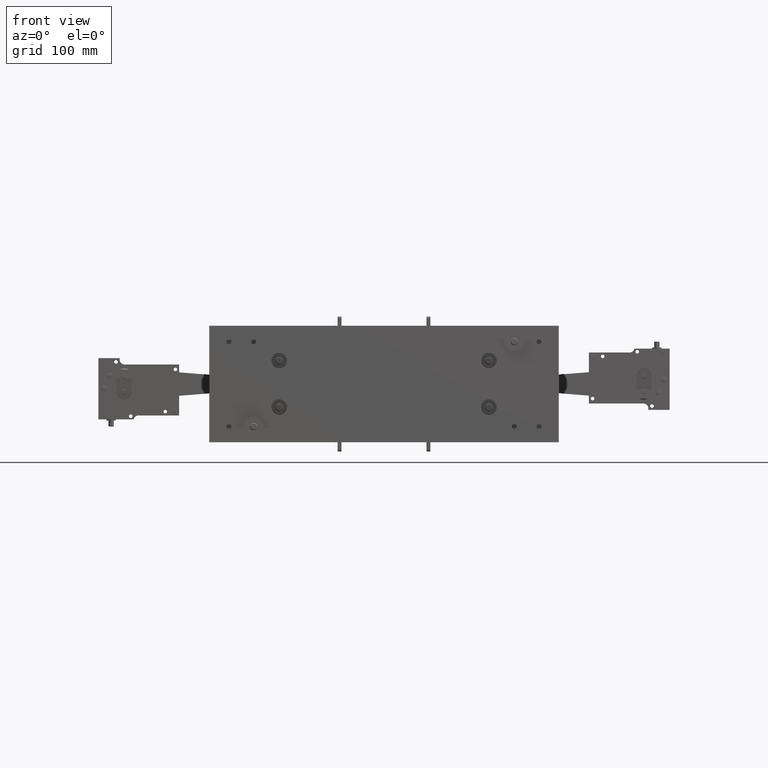
[diagram: clean part render]
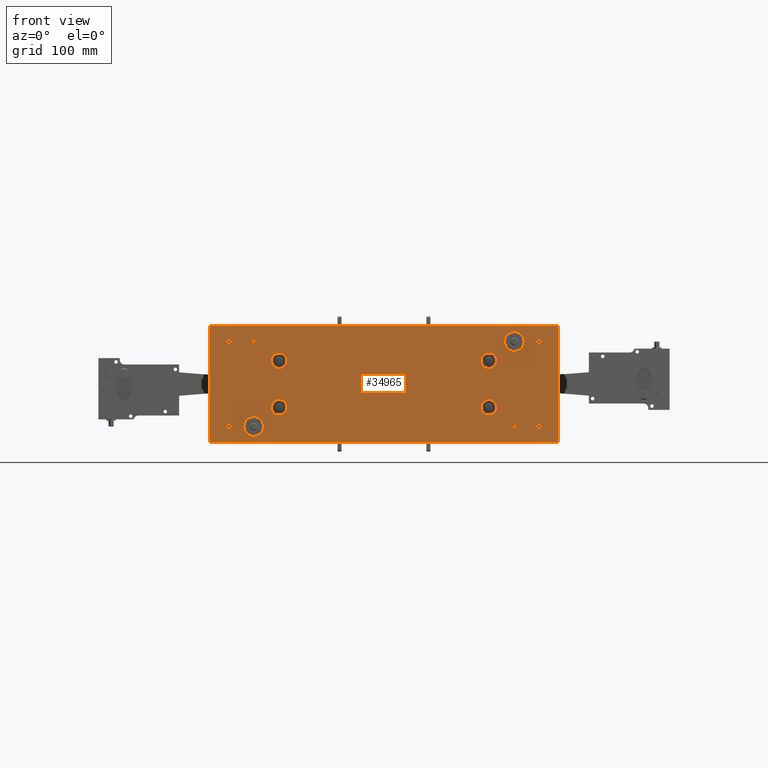
[diagram: same view with one face highlighted and labeled with its STEP entity id]
A machine part, front view. The second image highlights one B-rep face of the part: STEP entity #34965.
In plain terms, the highlighted planar face has unit normal (0, 1, -0).
Its self-contained STEP definition (entity closure, byte-faithful):
#242 = CIRCLE ( 'NONE', #25997, 0.1250000000000004400 ) ;
#1101 = DIRECTION ( 'NONE',  ( 0.0000000000000000000, 0.0000000000000000000, 1.000000000000000000 ) ) ;
#1282 = CARTESIAN_POINT ( 'NONE',  ( -2.151929547693748600, -0.7500000000000026600, -7.983267716535454600 ) ) ;
#1957 = CARTESIAN_POINT ( 'NONE',  ( -2.151929547693749000, -0.7500000000000026600, -7.858267716535455500 ) ) ;
#2049 = ORIENTED_EDGE ( 'NONE', *, *, #13159, .F. ) ;
#2130 = DIRECTION ( 'NONE',  ( 1.000000000000000000, 5.551115123125812300E-017, 5.551115123125792600E-017 ) ) ;
#2234 = VERTEX_POINT ( 'NONE', #7958 ) ;
#2467 = DIRECTION ( 'NONE',  ( 0.0000000000000000000, 0.0000000000000000000, 1.000000000000000000 ) ) ;
#2647 = AXIS2_PLACEMENT_3D ( 'NONE', #7887, #43933, #13110 ) ;
#3965 = VERTEX_POINT ( 'NONE', #35315 ) ;
#4120 = CARTESIAN_POINT ( 'NONE',  ( -1.181102362204727600, -0.7499999999999984500, 5.708460629921270300 ) ) ;
#4313 = DIRECTION ( 'NONE',  ( 0.0000000000000000000, -3.471217272762713500E-016, -1.000000000000000000 ) ) ;
#4514 = AXIS2_PLACEMENT_3D ( 'NONE', #44123, #13318, #49316 ) ;
#4682 = VERTEX_POINT ( 'NONE', #9297 ) ;
#4707 = DIRECTION ( 'NONE',  ( 0.0000000000000000000, 0.0000000000000000000, 1.000000000000000000 ) ) ;
#4764 = DIRECTION ( 'NONE',  ( 0.0000000000000000000, 0.0000000000000000000, 1.000000000000000000 ) ) ;
#4808 = DIRECTION ( 'NONE',  ( -5.551115123125822100E-017, -1.000000000000000000, -2.220446049250312300E-016 ) ) ;
#4943 = ORIENTED_EDGE ( 'NONE', *, *, #63337, .F. ) ;
#5320 = CARTESIAN_POINT ( 'NONE',  ( 2.151929547693746800, -0.7499999999999983300, 7.983267716535452000 ) ) ;
#6029 = CARTESIAN_POINT ( 'NONE',  ( -2.151929547693748600, -0.7500000000000004400, -6.608267716535447500 ) ) ;
#6861 = DIRECTION ( 'NONE',  ( -5.551115123125822100E-017, -1.000000000000000000, -2.220446049250312300E-016 ) ) ;
#6908 = EDGE_CURVE ( 'NONE', #41779, #29858, #30986, .T. ) ;
#7098 = FACE_BOUND ( 'NONE', #58626, .T. ) ;
#7102 = DIRECTION ( 'NONE',  ( 0.0000000000000000000, 0.0000000000000000000, 1.000000000000000000 ) ) ;
#7143 = AXIS2_PLACEMENT_3D ( 'NONE', #44502, #13704, #49711 ) ;
#7400 = EDGE_CURVE ( 'NONE', #14802, #49330, #22021, .T. ) ;
#7715 = ORIENTED_EDGE ( 'NONE', *, *, #24969, .F. ) ;
#7887 = CARTESIAN_POINT ( 'NONE',  ( -2.151929547693747700, -0.7500000000000004400, 7.858267716535447500 ) ) ;
#7958 = CARTESIAN_POINT ( 'NONE',  ( 2.952755905511815500, -0.7500000000000004400, -8.858267716535451100 ) ) ;
#8093 = DIRECTION ( 'NONE',  ( -5.551115123125790100E-017, -2.220446049250310400E-016, -1.000000000000000000 ) ) ;
#8515 = EDGE_CURVE ( 'NONE', #12765, #2234, #43656, .T. ) ;
#8742 = FACE_BOUND ( 'NONE', #19062, .T. ) ;
#8930 = CARTESIAN_POINT ( 'NONE',  ( 2.151929547693747200, -0.7500000000000004400, 6.733267716535443100 ) ) ;
#9140 = AXIS2_PLACEMENT_3D ( 'NONE', #62763, #31986, #1101 ) ;
#9297 = CARTESIAN_POINT ( 'NONE',  ( 2.151929547693749000, -0.7500000000000004400, -6.733267716535442200 ) ) ;
#9369 = CARTESIAN_POINT ( 'NONE',  ( 1.181102362204727200, -0.7499999999999983300, 5.314960629921269900 ) ) ;
#9571 = EDGE_CURVE ( 'NONE', #27897, #21378, #53244, .T. ) ;
#9574 = CIRCLE ( 'NONE', #47953, 0.1250000000000004400 ) ;
#9821 = AXIS2_PLACEMENT_3D ( 'NONE', #47384, #16548, #52566 ) ;
#9826 = ORIENTED_EDGE ( 'NONE', *, *, #10796, .F. ) ;
#9844 = CIRCLE ( 'NONE', #56192, 0.1250000000000004400 ) ;
#10070 = AXIS2_PLACEMENT_3D ( 'NONE', #65986, #35209, #4313 ) ;
#10349 = FACE_BOUND ( 'NONE', #42623, .T. ) ;
#10444 = DIRECTION ( 'NONE',  ( -5.551115123125822100E-017, -1.000000000000000000, -2.220446049250312300E-016 ) ) ;
#10796 = EDGE_CURVE ( 'NONE', #49330, #14802, #41003, .T. ) ;
#10889 = EDGE_CURVE ( 'NONE', #37471, #51520, #65149, .T. ) ;
#11226 = CARTESIAN_POINT ( 'NONE',  ( 2.151929547693746800, -0.7500000000000004400, 6.608267716535443100 ) ) ;
#11233 = DIRECTION ( 'NONE',  ( 0.0000000000000000000, 0.0000000000000000000, 1.000000000000000000 ) ) ;
#11251 = EDGE_LOOP ( 'NONE', ( #20246, #60544 ) ) ;
#11254 = EDGE_CURVE ( 'NONE', #18956, #47507, #23238, .T. ) ;
#11501 = ORIENTED_EDGE ( 'NONE', *, *, #46379, .F. ) ;
#11787 = CARTESIAN_POINT ( 'NONE',  ( -2.952755905511816400, -0.7500000000000026600, -8.858267716535454600 ) ) ;
#11971 = ORIENTED_EDGE ( 'NONE', *, *, #6908, .F. ) ;
#12020 = DIRECTION ( 'NONE',  ( -5.551115123125822100E-017, -1.000000000000000000, -2.220446049250312300E-016 ) ) ;
#12081 = EDGE_CURVE ( 'NONE', #21378, #27897, #39274, .T. ) ;
#12598 = VERTEX_POINT ( 'NONE', #29006 ) ;
#12765 = VERTEX_POINT ( 'NONE', #19727 ) ;
#12852 = CARTESIAN_POINT ( 'NONE',  ( -1.181102362204727200, -0.7500000000000005600, -5.708460629921272100 ) ) ;
#13110 = DIRECTION ( 'NONE',  ( 0.0000000000000000000, 0.0000000000000000000, -1.000000000000000000 ) ) ;
#13137 = AXIS2_PLACEMENT_3D ( 'NONE', #9369, #45401, #14598 ) ;
#13152 = VERTEX_POINT ( 'NONE', #58188 ) ;
#13159 = EDGE_CURVE ( 'NONE', #29858, #41779, #18232, .T. ) ;
#13318 = DIRECTION ( 'NONE',  ( -5.551115123125822100E-017, -1.000000000000000000, -2.220446049250312300E-016 ) ) ;
#13704 = DIRECTION ( 'NONE',  ( -5.551115123125822100E-017, -1.000000000000000000, -2.220446049250312300E-016 ) ) ;
#13712 = VECTOR ( 'NONE', #64773, 39.37007874015748100 ) ;
#14534 = AXIS2_PLACEMENT_3D ( 'NONE', #14878, #50879, #20015 ) ;
#14598 = DIRECTION ( 'NONE',  ( 0.0000000000000000000, -3.471217272762713500E-016, -1.000000000000000000 ) ) ;
#14647 = CARTESIAN_POINT ( 'NONE',  ( -2.151929547693748600, -0.7500000000000026600, -7.733267716535455500 ) ) ;
#14802 = VERTEX_POINT ( 'NONE', #39325 ) ;
#14878 = CARTESIAN_POINT ( 'NONE',  ( 1.181102362204727200, -0.7499999999999983300, 5.314960629921269900 ) ) ;
#15348 = PLANE ( 'NONE',  #53361 ) ;
#15882 = EDGE_LOOP ( 'NONE', ( #52192, #54060 ) ) ;
#16435 = DIRECTION ( 'NONE',  ( 0.0000000000000000000, 0.0000000000000000000, 1.000000000000000000 ) ) ;
#16474 = AXIS2_PLACEMENT_3D ( 'NONE', #1957, #37964, #7102 ) ;
#16548 = DIRECTION ( 'NONE',  ( -5.551115123125822100E-017, -1.000000000000000000, -2.220446049250312300E-016 ) ) ;
#17791 = EDGE_LOOP ( 'NONE', ( #31886, #9826 ) ) ;
#17866 = CARTESIAN_POINT ( 'NONE',  ( -1.181102362204727200, -0.7500000000000004400, -5.314960629921270800 ) ) ;
#18047 = DIRECTION ( 'NONE',  ( -5.551115123125822100E-017, -1.000000000000000000, -2.220446049250312300E-016 ) ) ;
#18232 = CIRCLE ( 'NONE', #34869, 0.1250000000000004400 ) ;
#18471 = EDGE_CURVE ( 'NONE', #43637, #45369, #27001, .T. ) ;
#18956 = VERTEX_POINT ( 'NONE', #41074 ) ;
#19062 = EDGE_LOOP ( 'NONE', ( #40105, #32878 ) ) ;
#19468 = EDGE_LOOP ( 'NONE', ( #11971, #2049 ) ) ;
#19486 = CIRCLE ( 'NONE', #9821, 0.1250000000000004400 ) ;
#19579 = EDGE_CURVE ( 'NONE', #54374, #3965, #57477, .T. ) ;
#19727 = CARTESIAN_POINT ( 'NONE',  ( 2.952755905511814200, -0.7499999999999983300, 8.858267716535452900 ) ) ;
#20015 = DIRECTION ( 'NONE',  ( 0.0000000000000000000, -3.471217272762713500E-016, -1.000000000000000000 ) ) ;
#20174 = CARTESIAN_POINT ( 'NONE',  ( 2.151929547693747700, -0.7500000000000004400, -7.858267716535452000 ) ) ;
#20246 = ORIENTED_EDGE ( 'NONE', *, *, #9571, .F. ) ;
#20386 = CIRCLE ( 'NONE', #9140, 0.1250000000000004400 ) ;
#20498 = CARTESIAN_POINT ( 'NONE',  ( -2.952755905511816900, -0.7500000000000026600, 8.858267716535449300 ) ) ;
#20615 = AXIS2_PLACEMENT_3D ( 'NONE', #48904, #18047, #54076 ) ;
#20825 = FACE_BOUND ( 'NONE', #15882, .T. ) ;
#21378 = VERTEX_POINT ( 'NONE', #22818 ) ;
#22021 = CIRCLE ( 'NONE', #39348, 0.1250000000000004400 ) ;
#22145 = EDGE_CURVE ( 'NONE', #13152, #4682, #22582, .T. ) ;
#22434 = FACE_BOUND ( 'NONE', #11251, .T. ) ;
#22553 = CARTESIAN_POINT ( 'NONE',  ( -2.151929547693747700, -0.7500000000000004400, 6.483267716535438700 ) ) ;
#22582 = CIRCLE ( 'NONE', #44975, 0.1250000000000004400 ) ;
#22818 = CARTESIAN_POINT ( 'NONE',  ( 1.181102362204726500, -0.7499999999999984500, 5.708460629921270300 ) ) ;
#23025 = DIRECTION ( 'NONE',  ( 0.0000000000000000000, -3.471217272762713500E-016, -1.000000000000000000 ) ) ;
#23238 = CIRCLE ( 'NONE', #59773, 0.1250000000000004400 ) ;
#23971 = CARTESIAN_POINT ( 'NONE',  ( -1.181102362204727000, -0.7500000000000005600, -4.921460629921271300 ) ) ;
#24045 = ORIENTED_EDGE ( 'NONE', *, *, #40938, .F. ) ;
#24055 = FACE_BOUND ( 'NONE', #48426, .T. ) ;
#24085 = CARTESIAN_POINT ( 'NONE',  ( -2.952755905511816900, -0.7500000000000026600, 8.858267716535449300 ) ) ;
#24129 = EDGE_LOOP ( 'NONE', ( #63192, #26146, #29986, #45289 ) ) ;
#24549 = CARTESIAN_POINT ( 'NONE',  ( -2.151929547693748600, -0.7500000000000004400, -6.608267716535447500 ) ) ;
#24712 = CIRCLE ( 'NONE', #66365, 0.1250000000000004400 ) ;
#24910 = AXIS2_PLACEMENT_3D ( 'NONE', #35715, #4808, #40863 ) ;
#24969 = EDGE_CURVE ( 'NONE', #4682, #13152, #66271, .T. ) ;
#25279 = CARTESIAN_POINT ( 'NONE',  ( 2.151929547693747700, -0.7500000000000004400, -7.983267716535452000 ) ) ;
#25341 = DIRECTION ( 'NONE',  ( 0.0000000000000000000, 0.0000000000000000000, -1.000000000000000000 ) ) ;
#25651 = DIRECTION ( 'NONE',  ( 5.551115123125790100E-017, 2.220446049250310400E-016, 1.000000000000000000 ) ) ;
#25705 = AXIS2_PLACEMENT_3D ( 'NONE', #66410, #35623, #4707 ) ;
#25997 = AXIS2_PLACEMENT_3D ( 'NONE', #59973, #29179, #65116 ) ;
#26146 = ORIENTED_EDGE ( 'NONE', *, *, #8515, .F. ) ;
#27001 = CIRCLE ( 'NONE', #16474, 0.1250000000000004400 ) ;
#27039 = VECTOR ( 'NONE', #47822, 39.37007874015748100 ) ;
#27897 = VERTEX_POINT ( 'NONE', #58963 ) ;
#28107 = CARTESIAN_POINT ( 'NONE',  ( 2.151929547693747700, -0.7500000000000004400, -7.858267716535452000 ) ) ;
#28680 = VERTEX_POINT ( 'NONE', #23971 ) ;
#28877 = ORIENTED_EDGE ( 'NONE', *, *, #62136, .F. ) ;
#29006 = CARTESIAN_POINT ( 'NONE',  ( -2.151929547693747700, -0.7500000000000004400, 6.733267716535439500 ) ) ;
#29179 = DIRECTION ( 'NONE',  ( -5.551115123125822100E-017, -1.000000000000000000, -2.220446049250312300E-016 ) ) ;
#29272 = ORIENTED_EDGE ( 'NONE', *, *, #19579, .F. ) ;
#29788 = DIRECTION ( 'NONE',  ( 0.0000000000000000000, 0.0000000000000000000, 1.000000000000000000 ) ) ;
#29858 = VERTEX_POINT ( 'NONE', #52926 ) ;
#29986 = ORIENTED_EDGE ( 'NONE', *, *, #37139, .F. ) ;
#30020 = VECTOR ( 'NONE', #8093, 39.37007874015748100 ) ;
#30986 = CIRCLE ( 'NONE', #2647, 0.1250000000000004400 ) ;
#31886 = ORIENTED_EDGE ( 'NONE', *, *, #7400, .F. ) ;
#31986 = DIRECTION ( 'NONE',  ( -5.551115123125822100E-017, -1.000000000000000000, -2.220446049250312300E-016 ) ) ;
#32548 = ORIENTED_EDGE ( 'NONE', *, *, #55360, .F. ) ;
#32878 = ORIENTED_EDGE ( 'NONE', *, *, #11254, .F. ) ;
#33291 = DIRECTION ( 'NONE',  ( 0.0000000000000000000, 0.0000000000000000000, -1.000000000000000000 ) ) ;
#33402 = DIRECTION ( 'NONE',  ( -5.551115123125822100E-017, -1.000000000000000000, -2.220446049250312300E-016 ) ) ;
#33955 = AXIS2_PLACEMENT_3D ( 'NONE', #28107, #64068, #33291 ) ;
#34002 = EDGE_LOOP ( 'NONE', ( #11501, #4943 ) ) ;
#34477 = ORIENTED_EDGE ( 'NONE', *, *, #36324, .F. ) ;
#34587 = FACE_BOUND ( 'NONE', #39781, .T. ) ;
#34869 = AXIS2_PLACEMENT_3D ( 'NONE', #42838, #12020, #48054 ) ;
#34905 = EDGE_CURVE ( 'NONE', #46918, #57346, #39372, .T. ) ;
#34965 = ADVANCED_FACE ( 'NONE', ( #49857, #63526, #10349, #22434, #8742, #24055, #61880, #48239, #34587, #20825, #7098, #60309, #46608 ), #15348, .F. ) ;
#35209 = DIRECTION ( 'NONE',  ( -5.551115123125822100E-017, -1.000000000000000000, -2.220446049250312300E-016 ) ) ;
#35315 = CARTESIAN_POINT ( 'NONE',  ( 1.181102362204726100, -0.7500000000000027800, -4.921460629921268600 ) ) ;
#35623 = DIRECTION ( 'NONE',  ( -5.551115123125822100E-017, -1.000000000000000000, -2.220446049250312300E-016 ) ) ;
#35677 = DIRECTION ( 'NONE',  ( -5.551115123125822100E-017, -1.000000000000000000, -2.220446049250312300E-016 ) ) ;
#35715 = CARTESIAN_POINT ( 'NONE',  ( -1.181102362204727200, -0.7500000000000004400, -5.314960629921270800 ) ) ;
#36324 = EDGE_CURVE ( 'NONE', #57346, #46918, #24712, .T. ) ;
#37139 = EDGE_CURVE ( 'NONE', #52957, #12765, #57666, .T. ) ;
#37471 = VERTEX_POINT ( 'NONE', #4120 ) ;
#37727 = CARTESIAN_POINT ( 'NONE',  ( 2.151929547693749000, -0.7500000000000004400, -6.608267716535442200 ) ) ;
#37964 = DIRECTION ( 'NONE',  ( -5.551115123125822100E-017, -1.000000000000000000, -2.220446049250312300E-016 ) ) ;
#38045 = ORIENTED_EDGE ( 'NONE', *, *, #58535, .F. ) ;
#38969 = CARTESIAN_POINT ( 'NONE',  ( 2.952755905511814200, -0.7499999999999983300, 8.858267716535452900 ) ) ;
#39274 = CIRCLE ( 'NONE', #14534, 0.3935000000000011300 ) ;
#39325 = CARTESIAN_POINT ( 'NONE',  ( 2.151929547693747200, -0.7500000000000004400, 6.483267716535442200 ) ) ;
#39348 = AXIS2_PLACEMENT_3D ( 'NONE', #11226, #47266, #16435 ) ;
#39372 = CIRCLE ( 'NONE', #25705, 0.1250000000000004400 ) ;
#39781 = EDGE_LOOP ( 'NONE', ( #57248, #28877 ) ) ;
#39884 = VERTEX_POINT ( 'NONE', #22553 ) ;
#40105 = ORIENTED_EDGE ( 'NONE', *, *, #48556, .F. ) ;
#40863 = DIRECTION ( 'NONE',  ( 0.0000000000000000000, -3.471217272762713500E-016, -1.000000000000000000 ) ) ;
#40938 = EDGE_CURVE ( 'NONE', #51520, #37471, #58216, .T. ) ;
#41003 = CIRCLE ( 'NONE', #54157, 0.1250000000000004400 ) ;
#41074 = CARTESIAN_POINT ( 'NONE',  ( -2.151929547693748100, -0.7500000000000004400, -6.483267716535446600 ) ) ;
#41293 = CARTESIAN_POINT ( 'NONE',  ( -1.181102362204727200, -0.7499999999999983300, 5.314960629921269900 ) ) ;
#41779 = VERTEX_POINT ( 'NONE', #63026 ) ;
#42058 = DIRECTION ( 'NONE',  ( -5.551115123125822100E-017, -1.000000000000000000, -2.220446049250312300E-016 ) ) ;
#42623 = EDGE_LOOP ( 'NONE', ( #24045, #44157 ) ) ;
#42803 = CARTESIAN_POINT ( 'NONE',  ( 1.181102362204726100, -0.7500000000000027800, -5.708460629921270300 ) ) ;
#42838 = CARTESIAN_POINT ( 'NONE',  ( -2.151929547693747700, -0.7500000000000004400, 7.858267716535447500 ) ) ;
#42900 = DIRECTION ( 'NONE',  ( 0.0000000000000000000, 0.0000000000000000000, -1.000000000000000000 ) ) ;
#43342 = EDGE_CURVE ( 'NONE', #66217, #2234, #54427, .T. ) ;
#43637 = VERTEX_POINT ( 'NONE', #1282 ) ;
#43656 = LINE ( 'NONE', #38969, #30020 ) ;
#43735 = EDGE_CURVE ( 'NONE', #65133, #54097, #51984, .T. ) ;
#43933 = DIRECTION ( 'NONE',  ( -5.551115123125822100E-017, -1.000000000000000000, -2.220446049250312300E-016 ) ) ;
#44062 = CARTESIAN_POINT ( 'NONE',  ( -2.952755905511816900, -0.7500000000000026600, 8.858267716535449300 ) ) ;
#44123 = CARTESIAN_POINT ( 'NONE',  ( -1.181102362204727200, -0.7499999999999983300, 5.314960629921269900 ) ) ;
#44157 = ORIENTED_EDGE ( 'NONE', *, *, #10889, .F. ) ;
#44502 = CARTESIAN_POINT ( 'NONE',  ( 1.181102362204726100, -0.7500000000000026600, -5.314960629921269100 ) ) ;
#44975 = AXIS2_PLACEMENT_3D ( 'NONE', #37727, #6861, #42900 ) ;
#45289 = ORIENTED_EDGE ( 'NONE', *, *, #55304, .T. ) ;
#45369 = VERTEX_POINT ( 'NONE', #14647 ) ;
#45401 = DIRECTION ( 'NONE',  ( -5.551115123125822100E-017, -1.000000000000000000, -2.220446049250312300E-016 ) ) ;
#45446 = AXIS2_PLACEMENT_3D ( 'NONE', #41293, #10444, #46483 ) ;
#45651 = EDGE_LOOP ( 'NONE', ( #38045, #49255 ) ) ;
#46153 = EDGE_CURVE ( 'NONE', #28680, #57272, #54939, .T. ) ;
#46379 = EDGE_CURVE ( 'NONE', #39884, #12598, #19486, .T. ) ;
#46419 = CARTESIAN_POINT ( 'NONE',  ( -2.952755905511816400, -0.7500000000000026600, -8.858267716535454600 ) ) ;
#46483 = DIRECTION ( 'NONE',  ( 0.0000000000000000000, -3.471217272762713500E-016, -1.000000000000000000 ) ) ;
#46608 = FACE_OUTER_BOUND ( 'NONE', #24129, .T. ) ;
#46918 = VERTEX_POINT ( 'NONE', #59853 ) ;
#47266 = DIRECTION ( 'NONE',  ( -5.551115123125822100E-017, -1.000000000000000000, -2.220446049250312300E-016 ) ) ;
#47384 = CARTESIAN_POINT ( 'NONE',  ( -2.151929547693747700, -0.7500000000000004400, 6.608267716535438700 ) ) ;
#47507 = VERTEX_POINT ( 'NONE', #63371 ) ;
#47822 = DIRECTION ( 'NONE',  ( 1.000000000000000000, 5.551115123125812300E-017, 5.551115123125792600E-017 ) ) ;
#47953 = AXIS2_PLACEMENT_3D ( 'NONE', #24549, #60558, #29788 ) ;
#48054 = DIRECTION ( 'NONE',  ( 0.0000000000000000000, 0.0000000000000000000, -1.000000000000000000 ) ) ;
#48239 = FACE_BOUND ( 'NONE', #34002, .T. ) ;
#48426 = EDGE_LOOP ( 'NONE', ( #7715, #55218 ) ) ;
#48556 = EDGE_CURVE ( 'NONE', #47507, #18956, #9574, .T. ) ;
#48904 = CARTESIAN_POINT ( 'NONE',  ( 2.151929547693749000, -0.7500000000000004400, -6.608267716535442200 ) ) ;
#49255 = ORIENTED_EDGE ( 'NONE', *, *, #46153, .F. ) ;
#49316 = DIRECTION ( 'NONE',  ( 0.0000000000000000000, -3.471217272762713500E-016, -1.000000000000000000 ) ) ;
#49330 = VERTEX_POINT ( 'NONE', #8930 ) ;
#49711 = DIRECTION ( 'NONE',  ( 0.0000000000000000000, -3.471217272762713500E-016, -1.000000000000000000 ) ) ;
#49857 = FACE_BOUND ( 'NONE', #57834, .T. ) ;
#50154 = CARTESIAN_POINT ( 'NONE',  ( -1.181102362204727200, -0.7499999999999984500, 4.921460629921268600 ) ) ;
#50879 = DIRECTION ( 'NONE',  ( -5.551115123125822100E-017, -1.000000000000000000, -2.220446049250312300E-016 ) ) ;
#51520 = VERTEX_POINT ( 'NONE', #50154 ) ;
#51984 = CIRCLE ( 'NONE', #33955, 0.1250000000000004400 ) ;
#52192 = ORIENTED_EDGE ( 'NONE', *, *, #62749, .F. ) ;
#52566 = DIRECTION ( 'NONE',  ( 0.0000000000000000000, 0.0000000000000000000, -1.000000000000000000 ) ) ;
#52926 = CARTESIAN_POINT ( 'NONE',  ( -2.151929547693747700, -0.7500000000000004400, 7.983267716535447500 ) ) ;
#52957 = VERTEX_POINT ( 'NONE', #24085 ) ;
#53173 = CIRCLE ( 'NONE', #7143, 0.3935000000000011300 ) ;
#53244 = CIRCLE ( 'NONE', #13137, 0.3935000000000011300 ) ;
#53268 = ORIENTED_EDGE ( 'NONE', *, *, #34905, .F. ) ;
#53361 = AXIS2_PLACEMENT_3D ( 'NONE', #20498, #56508, #25651 ) ;
#53886 = DIRECTION ( 'NONE',  ( -5.551115123125822100E-017, -1.000000000000000000, -2.220446049250312300E-016 ) ) ;
#54060 = ORIENTED_EDGE ( 'NONE', *, *, #43735, .F. ) ;
#54076 = DIRECTION ( 'NONE',  ( 0.0000000000000000000, 0.0000000000000000000, -1.000000000000000000 ) ) ;
#54097 = VERTEX_POINT ( 'NONE', #25279 ) ;
#54157 = AXIS2_PLACEMENT_3D ( 'NONE', #64157, #33402, #2467 ) ;
#54374 = VERTEX_POINT ( 'NONE', #42803 ) ;
#54427 = LINE ( 'NONE', #11787, #27039 ) ;
#54763 = LINE ( 'NONE', #44062, #13712 ) ;
#54939 = CIRCLE ( 'NONE', #24910, 0.3935000000000011300 ) ;
#55218 = ORIENTED_EDGE ( 'NONE', *, *, #22145, .F. ) ;
#55304 = EDGE_CURVE ( 'NONE', #52957, #66217, #54763, .T. ) ;
#55360 = EDGE_CURVE ( 'NONE', #3965, #54374, #53173, .T. ) ;
#56192 = AXIS2_PLACEMENT_3D ( 'NONE', #20174, #56201, #25341 ) ;
#56201 = DIRECTION ( 'NONE',  ( -5.551115123125822100E-017, -1.000000000000000000, -2.220446049250312300E-016 ) ) ;
#56508 = DIRECTION ( 'NONE',  ( 5.551115123125819700E-017, 1.000000000000000000, -2.220446049250310400E-016 ) ) ;
#57248 = ORIENTED_EDGE ( 'NONE', *, *, #18471, .F. ) ;
#57272 = VERTEX_POINT ( 'NONE', #12852 ) ;
#57346 = VERTEX_POINT ( 'NONE', #5320 ) ;
#57418 = CARTESIAN_POINT ( 'NONE',  ( -2.952755905511816900, -0.7500000000000026600, 8.858267716535449300 ) ) ;
#57477 = CIRCLE ( 'NONE', #10070, 0.3935000000000011300 ) ;
#57666 = LINE ( 'NONE', #57418, #59299 ) ;
#57834 = EDGE_LOOP ( 'NONE', ( #29272, #32548 ) ) ;
#58188 = CARTESIAN_POINT ( 'NONE',  ( 2.151929547693749000, -0.7500000000000004400, -6.483267716535442200 ) ) ;
#58216 = CIRCLE ( 'NONE', #45446, 0.3935000000000011300 ) ;
#58535 = EDGE_CURVE ( 'NONE', #57272, #28680, #63282, .T. ) ;
#58626 = EDGE_LOOP ( 'NONE', ( #53268, #34477 ) ) ;
#58963 = CARTESIAN_POINT ( 'NONE',  ( 1.181102362204727200, -0.7499999999999984500, 4.921460629921268600 ) ) ;
#59076 = AXIS2_PLACEMENT_3D ( 'NONE', #17866, #53886, #23025 ) ;
#59299 = VECTOR ( 'NONE', #2130, 39.37007874015748100 ) ;
#59773 = AXIS2_PLACEMENT_3D ( 'NONE', #6029, #42058, #11233 ) ;
#59853 = CARTESIAN_POINT ( 'NONE',  ( 2.151929547693746800, -0.7499999999999983300, 7.733267716535451100 ) ) ;
#59973 = CARTESIAN_POINT ( 'NONE',  ( -2.151929547693747700, -0.7500000000000004400, 6.608267716535438700 ) ) ;
#60309 = FACE_BOUND ( 'NONE', #19468, .T. ) ;
#60544 = ORIENTED_EDGE ( 'NONE', *, *, #12081, .F. ) ;
#60558 = DIRECTION ( 'NONE',  ( -5.551115123125822100E-017, -1.000000000000000000, -2.220446049250312300E-016 ) ) ;
#61880 = FACE_BOUND ( 'NONE', #17791, .T. ) ;
#62136 = EDGE_CURVE ( 'NONE', #45369, #43637, #20386, .T. ) ;
#62749 = EDGE_CURVE ( 'NONE', #54097, #65133, #9844, .T. ) ;
#62763 = CARTESIAN_POINT ( 'NONE',  ( -2.151929547693749000, -0.7500000000000026600, -7.858267716535455500 ) ) ;
#63026 = CARTESIAN_POINT ( 'NONE',  ( -2.151929547693747700, -0.7500000000000004400, 7.733267716535446600 ) ) ;
#63192 = ORIENTED_EDGE ( 'NONE', *, *, #43342, .T. ) ;
#63282 = CIRCLE ( 'NONE', #59076, 0.3935000000000011300 ) ;
#63337 = EDGE_CURVE ( 'NONE', #12598, #39884, #242, .T. ) ;
#63371 = CARTESIAN_POINT ( 'NONE',  ( -2.151929547693748100, -0.7500000000000004400, -6.733267716535447500 ) ) ;
#63526 = FACE_BOUND ( 'NONE', #45651, .T. ) ;
#64068 = DIRECTION ( 'NONE',  ( -5.551115123125822100E-017, -1.000000000000000000, -2.220446049250312300E-016 ) ) ;
#64157 = CARTESIAN_POINT ( 'NONE',  ( 2.151929547693746800, -0.7500000000000004400, 6.608267716535443100 ) ) ;
#64773 = DIRECTION ( 'NONE',  ( -5.551115123125790100E-017, -2.220446049250310400E-016, -1.000000000000000000 ) ) ;
#64968 = CARTESIAN_POINT ( 'NONE',  ( 2.151929547693748600, -0.7500000000000004400, -7.733267716535451100 ) ) ;
#65116 = DIRECTION ( 'NONE',  ( 0.0000000000000000000, 0.0000000000000000000, -1.000000000000000000 ) ) ;
#65133 = VERTEX_POINT ( 'NONE', #64968 ) ;
#65149 = CIRCLE ( 'NONE', #4514, 0.3935000000000011300 ) ;
#65986 = CARTESIAN_POINT ( 'NONE',  ( 1.181102362204726100, -0.7500000000000026600, -5.314960629921269100 ) ) ;
#66217 = VERTEX_POINT ( 'NONE', #46419 ) ;
#66271 = CIRCLE ( 'NONE', #20615, 0.1250000000000004400 ) ;
#66365 = AXIS2_PLACEMENT_3D ( 'NONE', #66470, #35677, #4764 ) ;
#66410 = CARTESIAN_POINT ( 'NONE',  ( 2.151929547693748100, -0.7499999999999983300, 7.858267716535452000 ) ) ;
#66470 = CARTESIAN_POINT ( 'NONE',  ( 2.151929547693748100, -0.7499999999999983300, 7.858267716535452000 ) ) ;